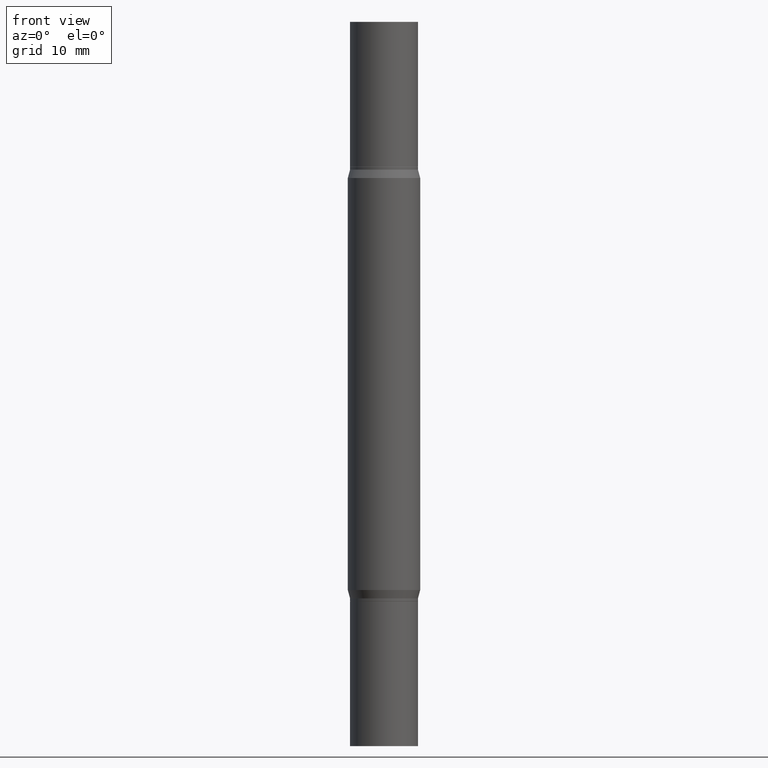
[diagram: clean part render]
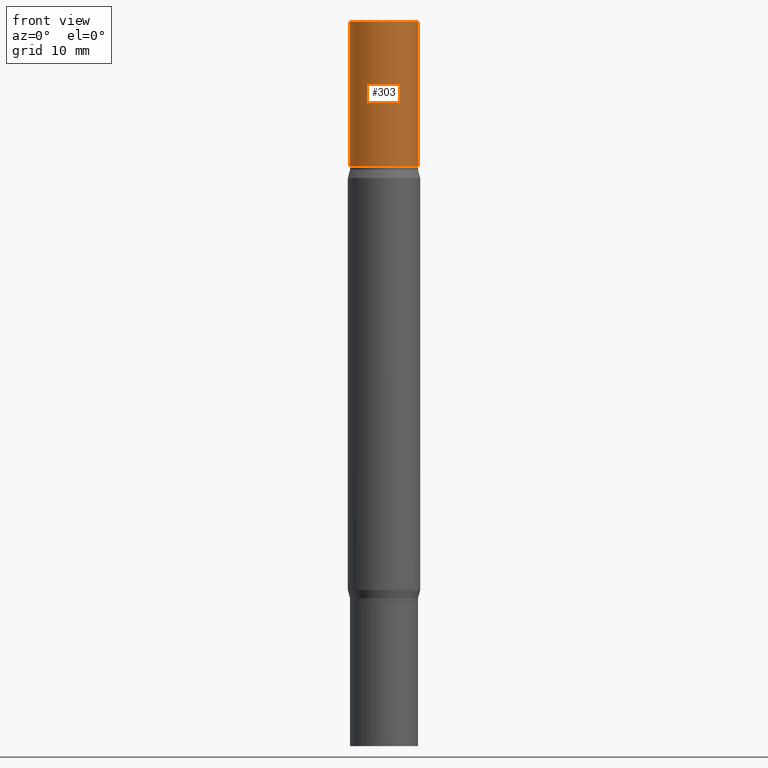
[diagram: same view with one face highlighted and labeled with its STEP entity id]
A machine part, front view. The second image highlights one B-rep face of the part: STEP entity #303.
In plain terms, the highlighted cylindrical surface (edge-blend (fillet) strip) has radius 2.9769 mm, axis along (-0, -0, -1).
Its self-contained STEP definition (entity closure, byte-faithful):
#5 = CARTESIAN_POINT ( 'NONE',  ( 6.113672015462842613E-29, 4.046951474745467748E-19, 5.463695987328526437E-16 ) ) ;
#37 = DIRECTION ( 'NONE',  ( -2.445468806185136597E-29, -3.491805094961124077E-15, -1.000000000000000000 ) ) ;
#60 = CARTESIAN_POINT ( 'NONE',  ( -0.1171999999999999986, -6.849621325398205664E-17, -0.4999999999999993339 ) ) ;
#64 = ORIENTED_EDGE ( 'NONE', *, *, #448, .T. ) ;
#66 = EDGE_LOOP ( 'NONE', ( #77, #64, #603, #580 ) ) ;
#77 = ORIENTED_EDGE ( 'NONE', *, *, #649, .F. ) ;
#107 = VECTOR ( 'NONE', #290, 39.37007874015748143 ) ;
#165 = LINE ( 'NONE', #817, #671 ) ;
#241 = DIRECTION ( 'NONE',  ( 2.445468806185136597E-29, 3.491805094961124077E-15, 1.000000000000000000 ) ) ;
#280 = DIRECTION ( 'NONE',  ( 2.445468806185136597E-29, 3.491805094961124077E-15, 1.000000000000000000 ) ) ;
#290 = DIRECTION ( 'NONE',  ( -2.445468806185136877E-29, -3.491805094961123683E-15, -1.000000000000000000 ) ) ;
#303 = ADVANCED_FACE ( 'NONE', ( #958 ), #361, .T. ) ;
#334 = AXIS2_PLACEMENT_3D ( 'NONE', #952, #280, #947 ) ;
#341 = CARTESIAN_POINT ( 'NONE',  ( 0.1171999999999999986, -2.563901078157915826E-15, -0.4999999999999993339 ) ) ;
#355 = EDGE_CURVE ( 'NONE', #926, #849, #931, .T. ) ;
#361 = CYLINDRICAL_SURFACE ( 'NONE', #380, 0.1171999999999999986 ) ;
#370 = DIRECTION ( 'NONE',  ( -2.445468806185136877E-29, -3.491805094961123683E-15, -1.000000000000000000 ) ) ;
#380 = AXIS2_PLACEMENT_3D ( 'NONE', #509, #37, #418 ) ;
#418 = DIRECTION ( 'NONE',  ( 1.000000000000000000, -6.982962677686269866E-15, 0.000000000000000000 ) ) ;
#448 = EDGE_CURVE ( 'NONE', #766, #926, #965, .T. ) ;
#509 = CARTESIAN_POINT ( 'NONE',  ( 0.000000000000000000, -8.729108042255335103E-15, -2.499999999999999556 ) ) ;
#573 = CIRCLE ( 'NONE', #729, 0.1171999999999999986 ) ;
#580 = ORIENTED_EDGE ( 'NONE', *, *, #961, .F. ) ;
#603 = ORIENTED_EDGE ( 'NONE', *, *, #355, .T. ) ;
#649 = EDGE_CURVE ( 'NONE', #766, #944, #573, .T. ) ;
#663 = CARTESIAN_POINT ( 'NONE',  ( -0.1171999999999999986, -6.849621325398194571E-17, 5.463695987328557991E-16 ) ) ;
#666 = CARTESIAN_POINT ( 'NONE',  ( 0.1171999999999999986, -8.179985306773559567E-16, 5.463695987328526437E-16 ) ) ;
#671 = VECTOR ( 'NONE', #370, 39.37007874015748143 ) ;
#729 = AXIS2_PLACEMENT_3D ( 'NONE', #5, #241, #842 ) ;
#738 = CARTESIAN_POINT ( 'NONE',  ( -0.1171999999999999986, -7.925057676916510614E-15, -2.499999999999999556 ) ) ;
#766 = VERTEX_POINT ( 'NONE', #663 ) ;
#817 = CARTESIAN_POINT ( 'NONE',  ( 0.1171999999999999986, -9.547511268080165952E-15, -2.499999999999999556 ) ) ;
#842 = DIRECTION ( 'NONE',  ( 1.000000000000000000, -6.982962677686266711E-15, 0.000000000000000000 ) ) ;
#849 = VERTEX_POINT ( 'NONE', #341 ) ;
#926 = VERTEX_POINT ( 'NONE', #60 ) ;
#931 = CIRCLE ( 'NONE', #334, 0.1171999999999999986 ) ;
#944 = VERTEX_POINT ( 'NONE', #666 ) ;
#947 = DIRECTION ( 'NONE',  ( 1.000000000000000000, -6.982962677686265922E-15, 0.000000000000000000 ) ) ;
#952 = CARTESIAN_POINT ( 'NONE',  ( 4.890937612370273754E-29, -1.745497852333085568E-15, -0.4999999999999993339 ) ) ;
#958 = FACE_OUTER_BOUND ( 'NONE', #66, .T. ) ;
#961 = EDGE_CURVE ( 'NONE', #944, #849, #165, .T. ) ;
#965 = LINE ( 'NONE', #738, #107 ) ;